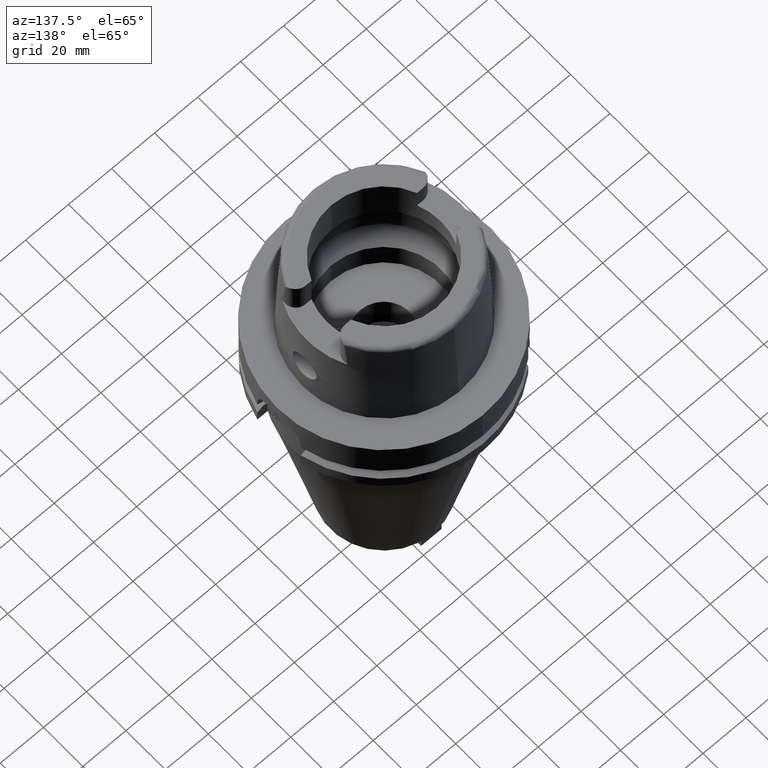
[diagram: clean part render]
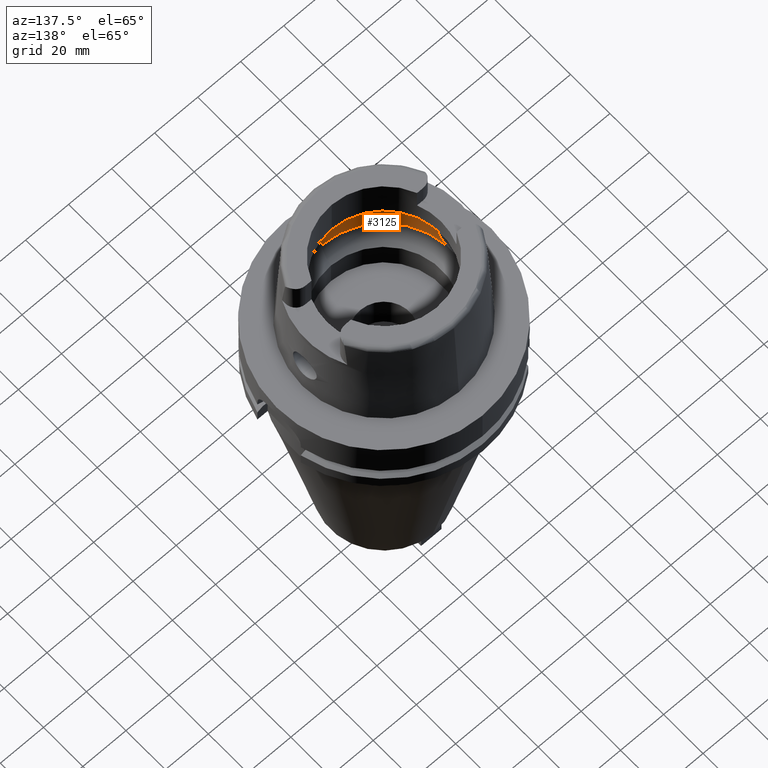
[diagram: same view with one face highlighted and labeled with its STEP entity id]
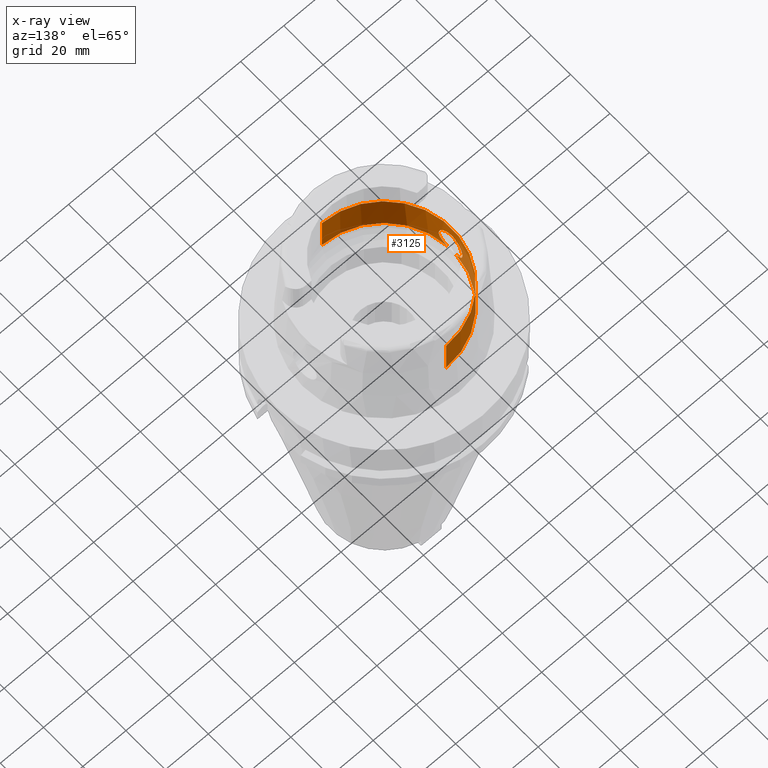
[diagram: x-ray of the same camera — body ghosted, the highlighted face saturated]
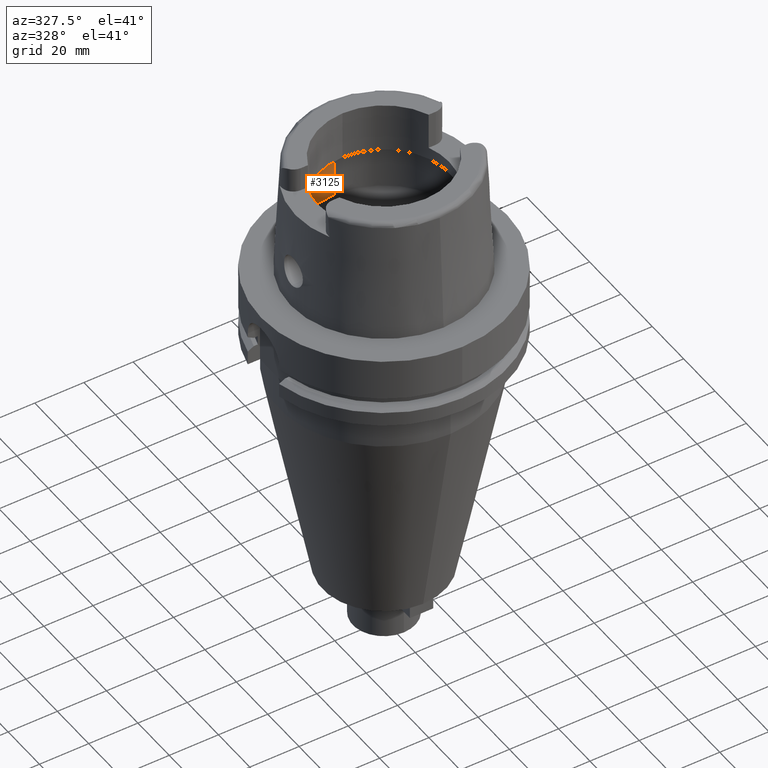
[diagram: same view with one face highlighted and labeled with its STEP entity id]
A machine part, auxiliary view. The second image highlights one B-rep face of the part: STEP entity #3125.
The next image is the same camera in x-ray: the body ghosted, the highlighted face saturated — about 7% of this face is hidden behind the body in this view.
A second angle (auxiliary view) of the same face is appended — the face is thin or edge-on in the first view.
In plain terms, the highlighted cylindrical surface (partial cylindrical patch) has radius 31.5 mm, axis along (0, 0, 1).
Its self-contained STEP definition (entity closure, byte-faithful):
#544=CARTESIAN_POINT('',(0.E0,0.E0,2.711662432703E1));
#545=DIRECTION('',(0.E0,0.E0,1.E0));
#546=DIRECTION('',(0.E0,1.E0,0.E0));
#547=AXIS2_PLACEMENT_3D('',#544,#545,#546);
#567=CARTESIAN_POINT('',(-3.15E1,0.E0,2.1E1));
#568=CARTESIAN_POINT('',(-3.15E1,-5.030387311961E-1,2.1E1));
#569=CARTESIAN_POINT('',(-3.147636262435E1,-1.477922823819E0,2.087773016984E1));
#570=CARTESIAN_POINT('',(-3.137720423853E1,-2.884454449364E0,2.033287480031E1));
#571=CARTESIAN_POINT('',(-3.123721482548E1,-4.111145985394E0,1.945572838461E1));
#572=CARTESIAN_POINT('',(-3.109018795093E1,-5.087117672629E0,1.829891871871E1));
#573=CARTESIAN_POINT('',(-3.097307086366E1,-5.743826320526E0,1.693819025279E1));
#574=CARTESIAN_POINT('',(-3.091489880585E1,-6.042822220773E0,1.547357762104E1));
#575=CARTESIAN_POINT('',(-3.092840473179E1,-5.974841560997E0,1.398016771038E1));
#576=CARTESIAN_POINT('',(-3.100990751217E1,-5.545486473032E0,1.255396760258E1));
#577=CARTESIAN_POINT('',(-3.114029760479E1,-4.777823775431E0,1.126741964662E1));
#578=CARTESIAN_POINT('',(-3.128909432280E1,-3.702847314796E0,1.020135014895E1));
#579=CARTESIAN_POINT('',(-3.137384055293E1,-2.854671855080E0,9.698366166089E0));
#580=CARTESIAN_POINT('',(-3.140918884336E1,-2.390158196044E0,9.496624327026E0));
#585=DIRECTION('',(0.E0,5.000414258470E-14,1.E0));
#586=VECTOR('',#585,1.762E1);
#587=CARTESIAN_POINT('',(0.E0,-3.15E1,9.496624327026E0));
#588=LINE('',#587,#586);
#592=CARTESIAN_POINT('',(-3.140918884336E1,2.390158196044E0,9.496624327026E0));
#593=CARTESIAN_POINT('',(-3.137368269282E1,2.856746302760E0,9.699267114601E0));
#594=CARTESIAN_POINT('',(-3.128852105250E1,3.708074282509E0,1.020478033381E1));
#595=CARTESIAN_POINT('',(-3.113912506180E1,4.785516830060E0,1.127658353707E1));
#596=CARTESIAN_POINT('',(-3.100864778045E1,5.552434887434E0,1.256891943053E1));
#597=CARTESIAN_POINT('',(-3.092768753124E1,5.978483707880E0,1.400016893021E1));
#598=CARTESIAN_POINT('',(-3.091523246537E1,6.041150711316E0,1.549617385870E1));
#599=CARTESIAN_POINT('',(-3.097451659217E1,5.736201423512E0,1.696078894772E1));
#600=CARTESIAN_POINT('',(-3.109234017698E1,5.074187221711E0,1.831854691115E1));
#601=CARTESIAN_POINT('',(-3.123927171550E1,4.095582734214E0,1.946963209683E1));
#602=CARTESIAN_POINT('',(-3.137849497073E1,2.869888298470E0,2.034018830843E1));
#603=CARTESIAN_POINT('',(-3.147669320009E1,1.468569101643E0,2.087942271066E1));
#604=CARTESIAN_POINT('',(-3.15E1,4.995074311664E-1,2.1E1));
#605=CARTESIAN_POINT('',(-3.15E1,0.E0,2.1E1));
#644=CARTESIAN_POINT('',(0.E0,0.E0,9.496624327026E0));
#645=DIRECTION('',(0.E0,0.E0,-1.E0));
#646=DIRECTION('',(-9.971171061384E-1,7.587803796965E-2,0.E0));
#647=AXIS2_PLACEMENT_3D('',#644,#645,#646);
#668=CARTESIAN_POINT('',(0.E0,0.E0,9.496624327026E0));
#669=DIRECTION('',(0.E0,0.E0,-1.E0));
#670=DIRECTION('',(0.E0,-1.E0,0.E0));
#671=AXIS2_PLACEMENT_3D('',#668,#669,#670);
#771=DIRECTION('',(0.E0,-5.000414258470E-14,1.E0));
#772=VECTOR('',#771,1.762E1);
#773=CARTESIAN_POINT('',(0.E0,3.15E1,9.496624327026E0));
#774=LINE('',#773,#772);
#2490=CARTESIAN_POINT('',(0.E0,3.15E1,2.711662432703E1));
#2491=VERTEX_POINT('',#2490);
#2492=CARTESIAN_POINT('',(0.E0,-3.15E1,2.711662432703E1));
#2493=VERTEX_POINT('',#2492);
#2494=VERTEX_POINT('',#567);
#2495=VERTEX_POINT('',#580);
#2496=CARTESIAN_POINT('',(0.E0,-3.15E1,9.496624327026E0));
#2497=VERTEX_POINT('',#2496);
#2498=CARTESIAN_POINT('',(0.E0,3.15E1,9.496624327026E0));
#2499=VERTEX_POINT('',#2498);
#2500=CARTESIAN_POINT('',(-3.140918884336E1,2.390158196044E0,9.496624327026E0));
#2501=VERTEX_POINT('',#2500);
#3105=CARTESIAN_POINT('',(0.E0,0.E0,-1.6735E2));
#3106=DIRECTION('',(0.E0,0.E0,1.E0));
#3107=DIRECTION('',(0.E0,1.E0,0.E0));
#3108=AXIS2_PLACEMENT_3D('',#3105,#3106,#3107);
#3109=CYLINDRICAL_SURFACE('',#3108,3.15E1);
#3111=ORIENTED_EDGE('',*,*,#3110,.T.);
#3113=ORIENTED_EDGE('',*,*,#3112,.F.);
#3115=ORIENTED_EDGE('',*,*,#3114,.T.);
#3116=ORIENTED_EDGE('',*,*,#3098,.F.);
#3118=ORIENTED_EDGE('',*,*,#3117,.F.);
#3120=ORIENTED_EDGE('',*,*,#3119,.F.);
#3122=ORIENTED_EDGE('',*,*,#3121,.T.);
#3123=EDGE_LOOP('',(#3111,#3113,#3115,#3116,#3118,#3120,#3122));
#3124=FACE_OUTER_BOUND('',#3123,.F.);
#548=CIRCLE('',#547,3.15E1);
#581=B_SPLINE_CURVE_WITH_KNOTS('',3,(#567,#568,#569,#570,#571,#572,#573,#574,
#575,#576,#577,#578,#579,#580),.UNSPECIFIED.,.F.,.F.,(4,1,1,1,1,1,1,1,1,1,1,4),(
0.E0,9.090909090909E-2,1.818181818182E-1,2.727272727273E-1,3.636363636364E-1,
4.545454545455E-1,5.454545454545E-1,6.363636363636E-1,7.272727272727E-1,
8.181818181818E-1,9.090909090909E-1,1.E0),.UNSPECIFIED.);
#606=B_SPLINE_CURVE_WITH_KNOTS('',3,(#592,#593,#594,#595,#596,#597,#598,#599,
#600,#601,#602,#603,#604,#605),.UNSPECIFIED.,.F.,.F.,(4,1,1,1,1,1,1,1,1,1,1,4),(
0.E0,9.090909090909E-2,1.818181818182E-1,2.727272727273E-1,3.636363636364E-1,
4.545454545455E-1,5.454545454545E-1,6.363636363636E-1,7.272727272727E-1,
8.181818181818E-1,9.090909090909E-1,1.E0),.UNSPECIFIED.);
#648=CIRCLE('',#647,3.15E1);
#672=CIRCLE('',#671,3.15E1);
#3098=EDGE_CURVE('',#2491,#2493,#548,.T.);
#3110=EDGE_CURVE('',#2494,#2495,#581,.T.);
#3112=EDGE_CURVE('',#2497,#2495,#672,.T.);
#3114=EDGE_CURVE('',#2497,#2493,#588,.T.);
#3117=EDGE_CURVE('',#2499,#2491,#774,.T.);
#3119=EDGE_CURVE('',#2501,#2499,#648,.T.);
#3121=EDGE_CURVE('',#2501,#2494,#606,.T.);
#3125=ADVANCED_FACE('',(#3124),#3109,.F.);